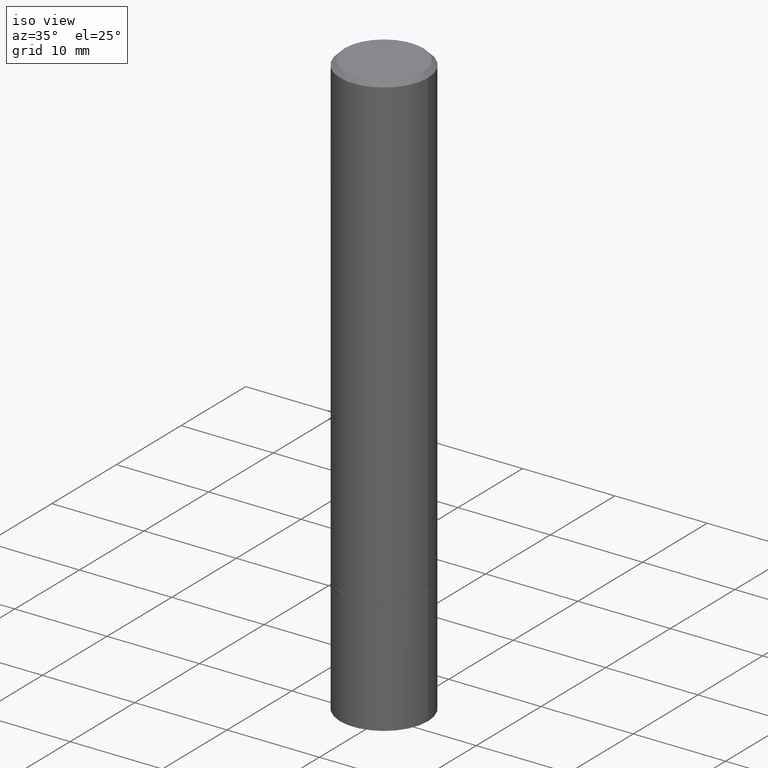
[diagram: clean part render]
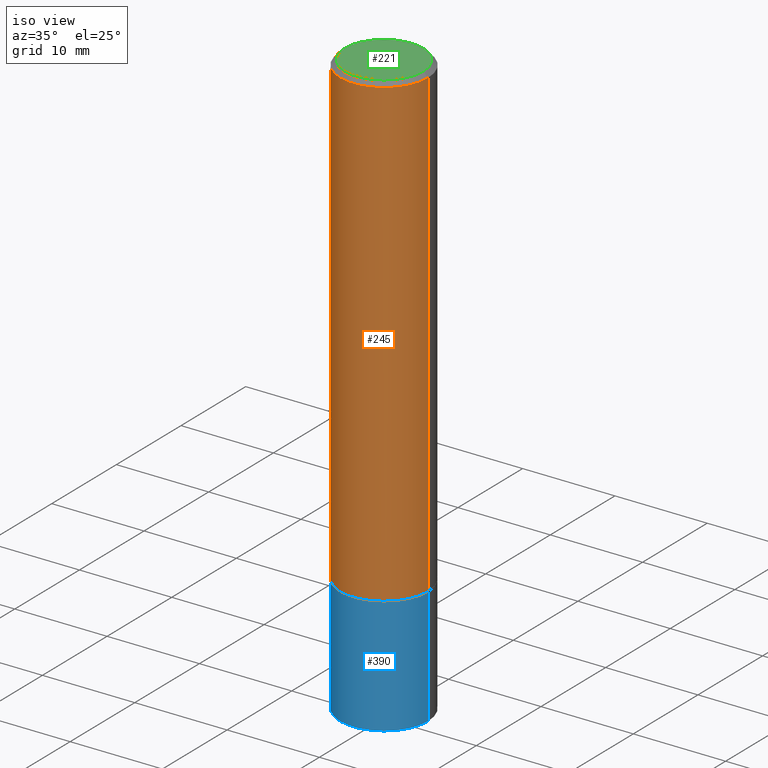
[diagram: same view with three faces highlighted in distinct colors, each labeled with its STEP entity id]
A machine part, iso view with three faces highlighted in distinct colors.
Their STEP definitions:

[orange] entity #245 — the highlighted cylindrical surface (partial cylindrical patch) has radius 4.7625 mm, axis along (-0, 0, 1).
#7 = CARTESIAN_POINT ( 'NONE',  ( 0.000000000000000000, 0.000000000000000000, 0.000000000000000000 ) ) ;
#35 = CYLINDRICAL_SURFACE ( 'NONE', #351, 0.1874999999999999167 ) ;
#37 = FACE_OUTER_BOUND ( 'NONE', #165, .T. ) ;
#42 = CARTESIAN_POINT ( 'NONE',  ( 0.1875000000000000555, -8.288776698413622377E-15, -1.998999999999999888 ) ) ;
#59 = CARTESIAN_POINT ( 'NONE',  ( -0.1874999999999997780, 1.239475875289310330E-15, -0.02000000000000004205 ) ) ;
#75 = DIRECTION ( 'NONE',  ( -2.445468806185136597E-29, 3.491481338843145583E-15, 1.000000000000000000 ) ) ;
#84 = EDGE_CURVE ( 'NONE', #288, #102, #91, .T. ) ;
#89 = CIRCLE ( 'NONE', #136, 0.1874999999999997780 ) ;
#91 = LINE ( 'NONE', #320, #162 ) ;
#97 = AXIS2_PLACEMENT_3D ( 'NONE', #163, #214, #104 ) ;
#99 = CARTESIAN_POINT ( 'NONE',  ( 0.1874999999999997780, -1.356173001359023691E-15, -0.02000000000000004205 ) ) ;
#102 = VERTEX_POINT ( 'NONE', #59 ) ;
#104 = DIRECTION ( 'NONE',  ( 1.000000000000000000, -6.982962677686265922E-15, 0.000000000000000000 ) ) ;
#122 = DIRECTION ( 'NONE',  ( -2.445468806185136877E-29, 3.491481338843145188E-15, 1.000000000000000000 ) ) ;
#130 = CARTESIAN_POINT ( 'NONE',  ( 4.890937612370283668E-31, -6.982962677686305168E-17, -0.02000000000000004205 ) ) ;
#136 = AXIS2_PLACEMENT_3D ( 'NONE', #130, #242, #220 ) ;
#153 = EDGE_CURVE ( 'NONE', #199, #299, #205, .T. ) ;
#162 = VECTOR ( 'NONE', #122, 39.37007874015748143 ) ;
#163 = CARTESIAN_POINT ( 'NONE',  ( 4.888492143564087591E-29, -6.979471196347447369E-15, -1.998999999999999888 ) ) ;
#165 = EDGE_LOOP ( 'NONE', ( #334, #364, #286, #349 ) ) ;
#199 = VERTEX_POINT ( 'NONE', #42 ) ;
#205 = LINE ( 'NONE', #324, #375 ) ;
#210 = DIRECTION ( 'NONE',  ( -2.445468806185136877E-29, 3.491481338843145188E-15, 1.000000000000000000 ) ) ;
#214 = DIRECTION ( 'NONE',  ( -2.445468806185136597E-29, 3.491481338843145583E-15, 1.000000000000000000 ) ) ;
#220 = DIRECTION ( 'NONE',  ( 1.000000000000000000, -6.982962677686265133E-15, 0.000000000000000000 ) ) ;
#242 = DIRECTION ( 'NONE',  ( -2.445468806185136597E-29, 3.491481338843145583E-15, 1.000000000000000000 ) ) ;
#245 = ADVANCED_FACE ( 'NONE', ( #37 ), #35, .T. ) ;
#246 = DIRECTION ( 'NONE',  ( 1.000000000000000000, -6.982962677686265922E-15, 4.876176775795935793E-29 ) ) ;
#286 = ORIENTED_EDGE ( 'NONE', *, *, #153, .T. ) ;
#288 = VERTEX_POINT ( 'NONE', #366 ) ;
#299 = VERTEX_POINT ( 'NONE', #99 ) ;
#315 = EDGE_CURVE ( 'NONE', #102, #299, #89, .T. ) ;
#320 = CARTESIAN_POINT ( 'NONE',  ( -0.1874999999999999167, 1.332267629550187257E-15, -9.223003294227943787E-30 ) ) ;
#323 = EDGE_CURVE ( 'NONE', #288, #199, #357, .T. ) ;
#324 = CARTESIAN_POINT ( 'NONE',  ( 0.1874999999999999167, -1.309305502066174219E-15, 9.142831454617375408E-30 ) ) ;
#334 = ORIENTED_EDGE ( 'NONE', *, *, #84, .F. ) ;
#349 = ORIENTED_EDGE ( 'NONE', *, *, #315, .F. ) ;
#351 = AXIS2_PLACEMENT_3D ( 'NONE', #7, #75, #246 ) ;
#357 = CIRCLE ( 'NONE', #97, 0.1875000000000000555 ) ;
#364 = ORIENTED_EDGE ( 'NONE', *, *, #323, .T. ) ;
#366 = CARTESIAN_POINT ( 'NONE',  ( -0.1875000000000000555, -2.192382782011965907E-15, -1.998999999999999888 ) ) ;
#375 = VECTOR ( 'NONE', #210, 39.37007874015748143 ) ;

[blue] entity #390 — the highlighted cylindrical surface (partial cylindrical patch) has radius 4.7625 mm, axis along (-0, 0, 1).
#33 = EDGE_CURVE ( 'NONE', #284, #316, #247, .T. ) ;
#39 = DIRECTION ( 'NONE',  ( -2.445468806185136597E-29, 3.491481338843145583E-15, 1.000000000000000000 ) ) ;
#58 = CYLINDRICAL_SURFACE ( 'NONE', #388, 0.1875000000000000278 ) ;
#64 = DIRECTION ( 'NONE',  ( -2.445468806185136597E-29, 3.491481338843145583E-15, 1.000000000000000000 ) ) ;
#69 = DIRECTION ( 'NONE',  ( 1.000000000000000000, -6.982962677686266711E-15, 0.000000000000000000 ) ) ;
#72 = CARTESIAN_POINT ( 'NONE',  ( 0.1875000000000000278, -1.309305502066175008E-15, 9.142831454617381013E-30 ) ) ;
#79 = DIRECTION ( 'NONE',  ( -2.445468806185136597E-29, 3.491481338843145583E-15, 1.000000000000000000 ) ) ;
#82 = VECTOR ( 'NONE', #389, 39.37007874015748143 ) ;
#101 = CARTESIAN_POINT ( 'NONE',  ( 0.1875000000000000278, -8.292268179752466962E-15, -2.000000000000000000 ) ) ;
#111 = CARTESIAN_POINT ( 'NONE',  ( 0.000000000000000000, 0.000000000000000000, 0.000000000000000000 ) ) ;
#123 = CARTESIAN_POINT ( 'NONE',  ( 0.1875000000000009992, -1.001504672169003342E-14, -2.500000000000000000 ) ) ;
#131 = VERTEX_POINT ( 'NONE', #123 ) ;
#135 = DIRECTION ( 'NONE',  ( 1.000000000000000000, -6.982962677686265922E-15, 4.876176775795935793E-29 ) ) ;
#140 = EDGE_LOOP ( 'NONE', ( #374, #173, #192, #379 ) ) ;
#150 = LINE ( 'NONE', #268, #82 ) ;
#152 = DIRECTION ( 'NONE',  ( 1.000000000000000000, -6.982962677686266711E-15, 0.000000000000000000 ) ) ;
#156 = VERTEX_POINT ( 'NONE', #265 ) ;
#157 = VECTOR ( 'NONE', #272, 39.37007874015748143 ) ;
#158 = LINE ( 'NONE', #72, #157 ) ;
#168 = EDGE_CURVE ( 'NONE', #156, #284, #150, .T. ) ;
#173 = ORIENTED_EDGE ( 'NONE', *, *, #348, .T. ) ;
#192 = ORIENTED_EDGE ( 'NONE', *, *, #259, .T. ) ;
#227 = FACE_OUTER_BOUND ( 'NONE', #140, .T. ) ;
#247 = CIRCLE ( 'NONE', #300, 0.1875000000000000278 ) ;
#259 = EDGE_CURVE ( 'NONE', #131, #316, #158, .T. ) ;
#265 = CARTESIAN_POINT ( 'NONE',  ( -0.1875000000000009992, -7.419397845041682046E-15, -2.500000000000000000 ) ) ;
#268 = CARTESIAN_POINT ( 'NONE',  ( -0.1875000000000000278, 1.332267629550188046E-15, -9.223003294227947991E-30 ) ) ;
#272 = DIRECTION ( 'NONE',  ( -2.445468806185136877E-29, 3.491481338843145188E-15, 1.000000000000000000 ) ) ;
#282 = CIRCLE ( 'NONE', #329, 0.1875000000000000278 ) ;
#284 = VERTEX_POINT ( 'NONE', #371 ) ;
#300 = AXIS2_PLACEMENT_3D ( 'NONE', #384, #64, #152 ) ;
#316 = VERTEX_POINT ( 'NONE', #101 ) ;
#329 = AXIS2_PLACEMENT_3D ( 'NONE', #340, #39, #69 ) ;
#340 = CARTESIAN_POINT ( 'NONE',  ( 6.113672015462842613E-29, -8.728703347107864943E-15, -2.500000000000000000 ) ) ;
#348 = EDGE_CURVE ( 'NONE', #156, #131, #282, .T. ) ;
#371 = CARTESIAN_POINT ( 'NONE',  ( -0.1875000000000000278, -6.523565382846889811E-15, -2.000000000000000000 ) ) ;
#374 = ORIENTED_EDGE ( 'NONE', *, *, #168, .F. ) ;
#379 = ORIENTED_EDGE ( 'NONE', *, *, #33, .F. ) ;
#384 = CARTESIAN_POINT ( 'NONE',  ( 4.890937612370273194E-29, -6.982962677686291165E-15, -2.000000000000000000 ) ) ;
#388 = AXIS2_PLACEMENT_3D ( 'NONE', #111, #79, #135 ) ;
#389 = DIRECTION ( 'NONE',  ( -2.445468806185136877E-29, 3.491481338843145188E-15, 1.000000000000000000 ) ) ;
#390 = ADVANCED_FACE ( 'NONE', ( #227 ), #58, .T. ) ;

[green] entity #221 — the highlighted planar face has unit normal (0, -0, -1).
#1 = CARTESIAN_POINT ( 'NONE',  ( -0.1674999999999997879, 1.204561061900879272E-15, -8.301862719484101980E-30 ) ) ;
#3 = CARTESIAN_POINT ( 'NONE',  ( 0.000000000000000000, 0.000000000000000000, 0.000000000000000000 ) ) ;
#12 = FACE_OUTER_BOUND ( 'NONE', #196, .T. ) ;
#21 = VERTEX_POINT ( 'NONE', #1 ) ;
#28 = EDGE_CURVE ( 'NONE', #377, #21, #312, .T. ) ;
#70 = CARTESIAN_POINT ( 'NONE',  ( 1.169646248512448215E-15, 0.1674999999999997879, -5.848231242562260795E-16 ) ) ;
#126 = CARTESIAN_POINT ( 'NONE',  ( 0.000000000000000000, 0.000000000000000000, 0.000000000000000000 ) ) ;
#129 = DIRECTION ( 'NONE',  ( -2.445468806185136597E-29, 3.491481338843145583E-15, 1.000000000000000000 ) ) ;
#138 = CARTESIAN_POINT ( 'NONE',  ( 0.1674999999999997879, -1.252653207992876908E-15, 8.469775550109228175E-30 ) ) ;
#178 = DIRECTION ( 'NONE',  ( 1.000000000000000000, -6.982962677686266711E-15, 4.876176775795935793E-29 ) ) ;
#196 = EDGE_LOOP ( 'NONE', ( #353, #279 ) ) ;
#206 = CIRCLE ( 'NONE', #369, 0.1674999999999997879 ) ;
#221 = ADVANCED_FACE ( 'NONE', ( #12 ), #275, .F. ) ;
#241 = DIRECTION ( 'NONE',  ( 1.000000000000000000, -6.982962677686266711E-15, 4.876176775795935793E-29 ) ) ;
#251 = DIRECTION ( 'NONE',  ( -1.000000000000000000, 6.982962677686265922E-15, -4.876176775795935793E-29 ) ) ;
#275 = PLANE ( 'NONE',  #322 ) ;
#279 = ORIENTED_EDGE ( 'NONE', *, *, #28, .T. ) ;
#285 = EDGE_CURVE ( 'NONE', #21, #377, #206, .T. ) ;
#312 = CIRCLE ( 'NONE', #381, 0.1674999999999997879 ) ;
#322 = AXIS2_PLACEMENT_3D ( 'NONE', #70, #338, #251 ) ;
#338 = DIRECTION ( 'NONE',  ( 2.438088387897960049E-29, -3.491481338843145188E-15, -1.000000000000000000 ) ) ;
#353 = ORIENTED_EDGE ( 'NONE', *, *, #285, .T. ) ;
#369 = AXIS2_PLACEMENT_3D ( 'NONE', #3, #129, #241 ) ;
#377 = VERTEX_POINT ( 'NONE', #138 ) ;
#381 = AXIS2_PLACEMENT_3D ( 'NONE', #126, #383, #178 ) ;
#383 = DIRECTION ( 'NONE',  ( -2.445468806185136597E-29, 3.491481338843145583E-15, 1.000000000000000000 ) ) ;